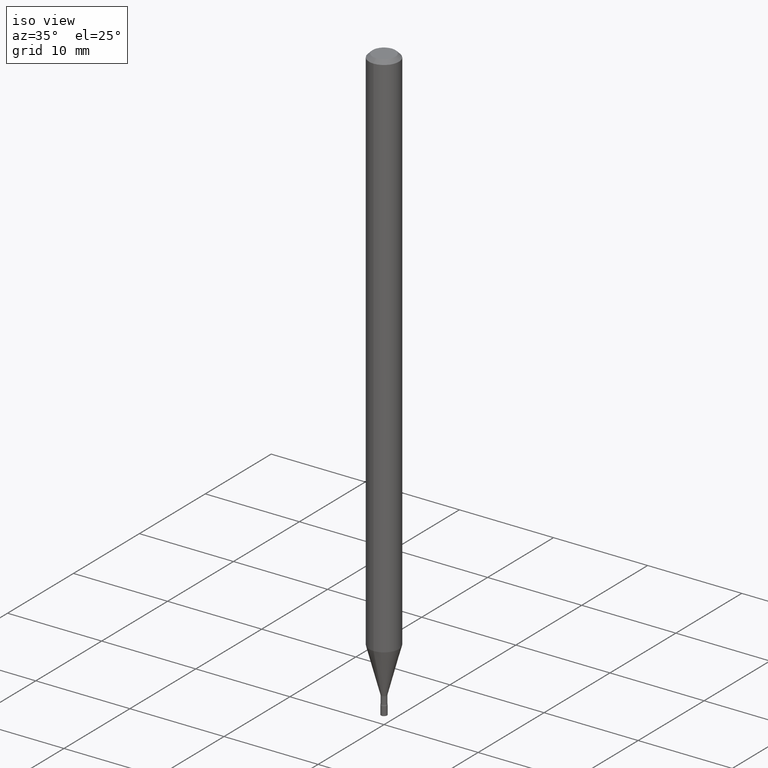
[diagram: clean part render]
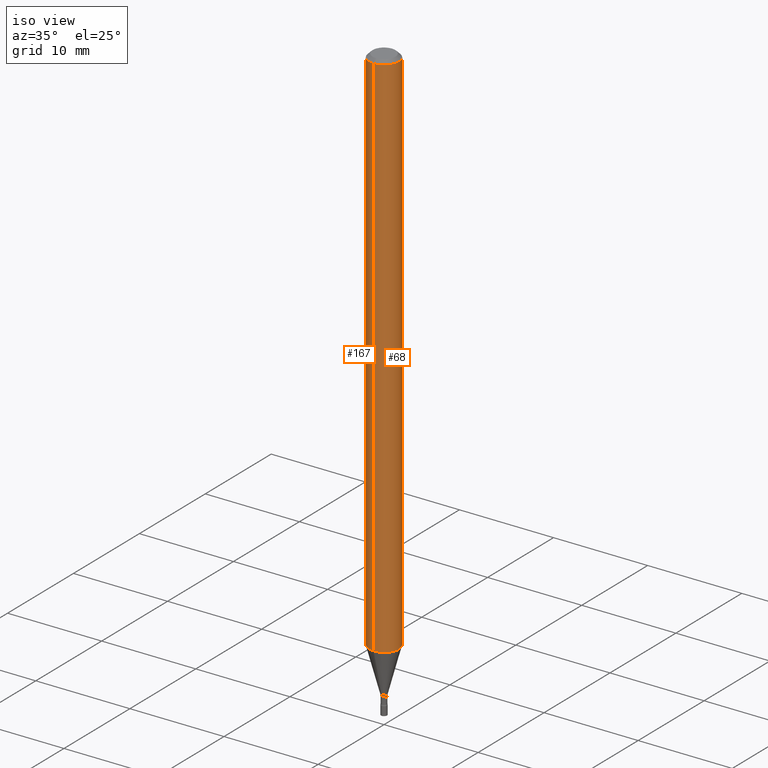
[diagram: same view with one multi-face feature highlighted, each face labeled with its STEP entity id]
A machine part, iso view. The highlighted faces form ONE feature: a constant-radius fillet chain: 2 tangent blend faces with common blend radius 1.5875 mm. The faces share edges in the B-rep.
Their STEP definitions:
[1] entity #68 (Cylinder):
#37 = LINE ( 'NONE', #373, #429 ) ;
#68 = ADVANCED_FACE ( 'NONE', ( #70 ), #168, .T. ) ;
#70 = FACE_OUTER_BOUND ( 'NONE', #130, .T. ) ;
#83 = DIRECTION ( 'NONE',  ( -2.445524548783828463E-29, 3.491401512269146579E-15, 1.000000000000000000 ) ) ;
#110 = VERTEX_POINT ( 'NONE', #338 ) ;
#114 = CARTESIAN_POINT ( 'NONE',  ( 3.668286823175750261E-31, -5.237102268403730666E-17, -0.01500000000000003067 ) ) ;
#116 = DIRECTION ( 'NONE',  ( -2.445524548783828743E-29, 3.491401512269146579E-15, 1.000000000000000000 ) ) ;
#130 = EDGE_LOOP ( 'NONE', ( #455, #449, #457, #488 ) ) ;
#133 = DIRECTION ( 'NONE',  ( -6.982962677686265922E-15, -1.000000000000000000, 3.483106191921935554E-15 ) ) ;
#147 = EDGE_CURVE ( 'NONE', #312, #110, #453, .T. ) ;
#157 = CARTESIAN_POINT ( 'NONE',  ( 5.467210821039463204E-29, -7.805371709707060200E-15, -2.235598421515879952 ) ) ;
#168 = CYLINDRICAL_SURFACE ( 'NONE', #330, 0.06250000000000000000 ) ;
#200 = DIRECTION ( 'NONE',  ( -6.982962677686265922E-15, -1.000000000000000000, 3.491401512269146579E-15 ) ) ;
#248 = EDGE_CURVE ( 'NONE', #378, #342, #309, .T. ) ;
#254 = CARTESIAN_POINT ( 'NONE',  ( 0.000000000000000000, 0.000000000000000000, 0.000000000000000000 ) ) ;
#265 = VECTOR ( 'NONE', #395, 39.37007874015748143 ) ;
#309 = CIRCLE ( 'NONE', #446, 0.06250000000000000000 ) ;
#312 = VERTEX_POINT ( 'NONE', #441 ) ;
#328 = DIRECTION ( 'NONE',  ( -2.445524548783828743E-29, 3.491401512269146579E-15, 1.000000000000000000 ) ) ;
#330 = AXIS2_PLACEMENT_3D ( 'NONE', #254, #116, #200 ) ;
#333 = DIRECTION ( 'NONE',  ( -2.445524548783828743E-29, 3.491401512269146579E-15, 1.000000000000000000 ) ) ;
#338 = CARTESIAN_POINT ( 'NONE',  ( 4.440892098501175406E-16, 0.06249999999999995143, -0.01500000000000024751 ) ) ;
#342 = VERTEX_POINT ( 'NONE', #362 ) ;
#362 = CARTESIAN_POINT ( 'NONE',  ( 4.440892098501171462E-16, 0.06249999999999219374, -2.235598421515880396 ) ) ;
#373 = CARTESIAN_POINT ( 'NONE',  ( -4.364351673553916201E-16, -0.06250000000000000000, 2.182125945168216612E-16 ) ) ;
#374 = EDGE_CURVE ( 'NONE', #342, #110, #401, .T. ) ;
#378 = VERTEX_POINT ( 'NONE', #434 ) ;
#382 = AXIS2_PLACEMENT_3D ( 'NONE', #114, #333, #133 ) ;
#395 = DIRECTION ( 'NONE',  ( -2.445524548783828463E-29, 3.491401512269146579E-15, 1.000000000000000000 ) ) ;
#401 = LINE ( 'NONE', #428, #265 ) ;
#428 = CARTESIAN_POINT ( 'NONE',  ( 4.440892098500625669E-16, 0.06250000000000000000, -2.182125945168216612E-16 ) ) ;
#429 = VECTOR ( 'NONE', #83, 39.37007874015748143 ) ;
#434 = CARTESIAN_POINT ( 'NONE',  ( -4.364351673553370408E-16, -0.06250000000000781319, -2.235598421515879952 ) ) ;
#439 = DIRECTION ( 'NONE',  ( -6.982962677686265922E-15, -1.000000000000000000, 4.370956789862821150E-15 ) ) ;
#441 = CARTESIAN_POINT ( 'NONE',  ( -4.364351673553912750E-16, -0.06250000000000005551, -0.01499999999999981209 ) ) ;
#444 = EDGE_CURVE ( 'NONE', #378, #312, #37, .T. ) ;
#446 = AXIS2_PLACEMENT_3D ( 'NONE', #157, #328, #439 ) ;
#449 = ORIENTED_EDGE ( 'NONE', *, *, #374, .T. ) ;
#453 = CIRCLE ( 'NONE', #382, 0.06250000000000000000 ) ;
#455 = ORIENTED_EDGE ( 'NONE', *, *, #248, .T. ) ;
#457 = ORIENTED_EDGE ( 'NONE', *, *, #147, .F. ) ;
#488 = ORIENTED_EDGE ( 'NONE', *, *, #444, .F. ) ;
[2] entity #167 (Cylinder):
#37 = LINE ( 'NONE', #373, #429 ) ;
#41 = EDGE_CURVE ( 'NONE', #342, #378, #128, .T. ) ;
#50 = DIRECTION ( 'NONE',  ( -2.445524548783828743E-29, 3.491401512269146579E-15, 1.000000000000000000 ) ) ;
#83 = DIRECTION ( 'NONE',  ( -2.445524548783828463E-29, 3.491401512269146579E-15, 1.000000000000000000 ) ) ;
#105 = DIRECTION ( 'NONE',  ( -6.982962677686265922E-15, -1.000000000000000000, 3.483106191921935554E-15 ) ) ;
#110 = VERTEX_POINT ( 'NONE', #338 ) ;
#128 = CIRCLE ( 'NONE', #371, 0.06250000000000000000 ) ;
#149 = ORIENTED_EDGE ( 'NONE', *, *, #374, .F. ) ;
#167 = ADVANCED_FACE ( 'NONE', ( #423 ), #273, .T. ) ;
#169 = CARTESIAN_POINT ( 'NONE',  ( 3.668286823175750261E-31, -5.237102268403730666E-17, -0.01500000000000003067 ) ) ;
#171 = EDGE_LOOP ( 'NONE', ( #149, #314, #344, #408 ) ) ;
#183 = DIRECTION ( 'NONE',  ( -2.445524548783828743E-29, 3.491401512269146579E-15, 1.000000000000000000 ) ) ;
#235 = CARTESIAN_POINT ( 'NONE',  ( 5.467210821039463204E-29, -7.805371709707060200E-15, -2.235598421515879952 ) ) ;
#243 = CIRCLE ( 'NONE', #512, 0.06250000000000000000 ) ;
#265 = VECTOR ( 'NONE', #395, 39.37007874015748143 ) ;
#273 = CYLINDRICAL_SURFACE ( 'NONE', #497, 0.06250000000000000000 ) ;
#312 = VERTEX_POINT ( 'NONE', #441 ) ;
#314 = ORIENTED_EDGE ( 'NONE', *, *, #41, .T. ) ;
#325 = DIRECTION ( 'NONE',  ( -6.982962677686265922E-15, -1.000000000000000000, 3.491401512269146579E-15 ) ) ;
#327 = DIRECTION ( 'NONE',  ( -6.982962677686265922E-15, -1.000000000000000000, 4.370956789862821150E-15 ) ) ;
#338 = CARTESIAN_POINT ( 'NONE',  ( 4.440892098501175406E-16, 0.06249999999999995143, -0.01500000000000024751 ) ) ;
#342 = VERTEX_POINT ( 'NONE', #362 ) ;
#344 = ORIENTED_EDGE ( 'NONE', *, *, #444, .T. ) ;
#356 = CARTESIAN_POINT ( 'NONE',  ( 0.000000000000000000, 0.000000000000000000, 0.000000000000000000 ) ) ;
#362 = CARTESIAN_POINT ( 'NONE',  ( 4.440892098501171462E-16, 0.06249999999999219374, -2.235598421515880396 ) ) ;
#371 = AXIS2_PLACEMENT_3D ( 'NONE', #235, #507, #327 ) ;
#373 = CARTESIAN_POINT ( 'NONE',  ( -4.364351673553916201E-16, -0.06250000000000000000, 2.182125945168216612E-16 ) ) ;
#374 = EDGE_CURVE ( 'NONE', #342, #110, #401, .T. ) ;
#378 = VERTEX_POINT ( 'NONE', #434 ) ;
#395 = DIRECTION ( 'NONE',  ( -2.445524548783828463E-29, 3.491401512269146579E-15, 1.000000000000000000 ) ) ;
#401 = LINE ( 'NONE', #428, #265 ) ;
#408 = ORIENTED_EDGE ( 'NONE', *, *, #456, .F. ) ;
#423 = FACE_OUTER_BOUND ( 'NONE', #171, .T. ) ;
#428 = CARTESIAN_POINT ( 'NONE',  ( 4.440892098500625669E-16, 0.06250000000000000000, -2.182125945168216612E-16 ) ) ;
#429 = VECTOR ( 'NONE', #83, 39.37007874015748143 ) ;
#434 = CARTESIAN_POINT ( 'NONE',  ( -4.364351673553370408E-16, -0.06250000000000781319, -2.235598421515879952 ) ) ;
#441 = CARTESIAN_POINT ( 'NONE',  ( -4.364351673553912750E-16, -0.06250000000000005551, -0.01499999999999981209 ) ) ;
#444 = EDGE_CURVE ( 'NONE', #378, #312, #37, .T. ) ;
#456 = EDGE_CURVE ( 'NONE', #110, #312, #243, .T. ) ;
#497 = AXIS2_PLACEMENT_3D ( 'NONE', #356, #183, #325 ) ;
#507 = DIRECTION ( 'NONE',  ( -2.445524548783828743E-29, 3.491401512269146579E-15, 1.000000000000000000 ) ) ;
#512 = AXIS2_PLACEMENT_3D ( 'NONE', #169, #50, #105 ) ;